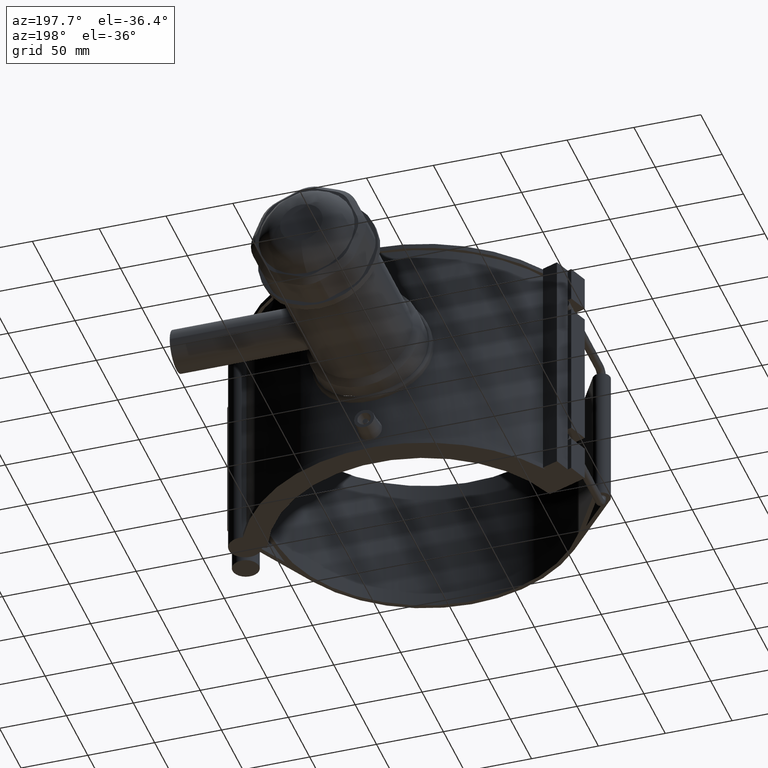
[diagram: clean part render]
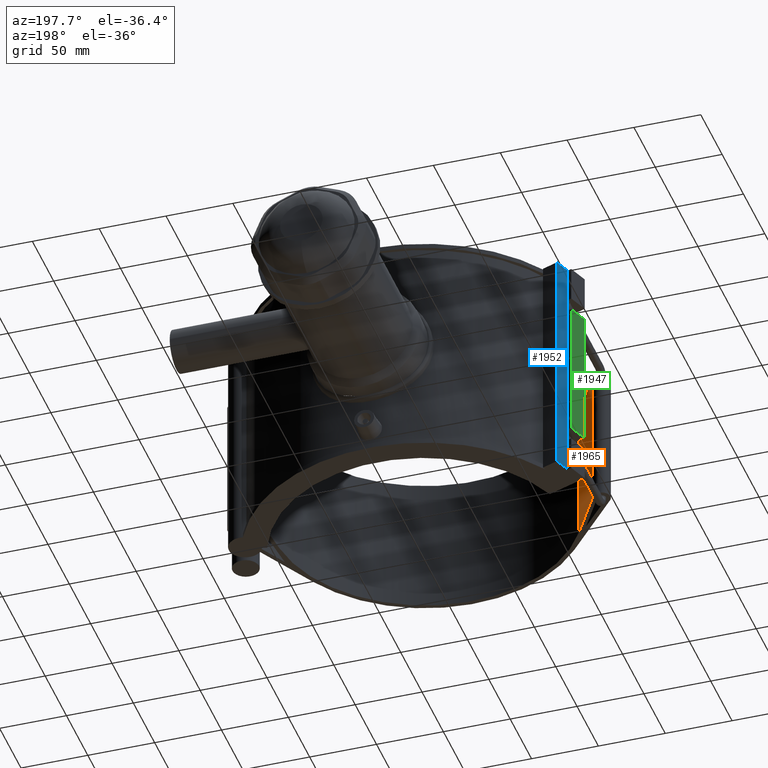
[diagram: same view with three faces highlighted in distinct colors, each labeled with its STEP entity id]
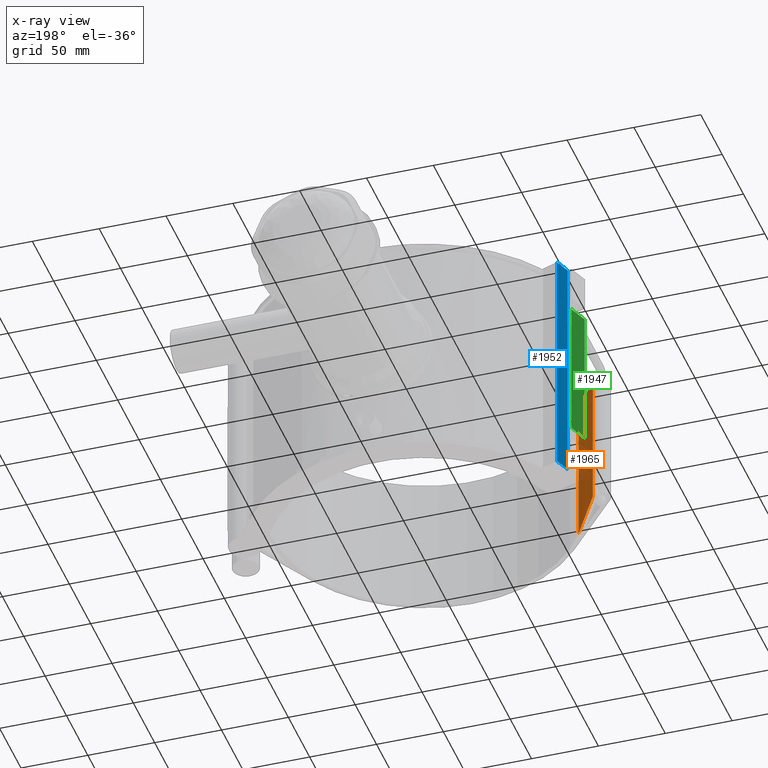
[diagram: x-ray of the same camera — body ghosted, the three highlighted faces saturated]
A machine part, auxiliary view with three faces highlighted in distinct colors.
The next image is the same camera in x-ray (body ghosted, the three faces saturated) — at least one of them is partly hidden behind the body in this view.
Their STEP definitions:

[orange] entity #1965 — the highlighted planar face has unit normal (0.8593, 0.5115, 0).
#104=LINE('',#3333,#265);
#109=LINE('',#3353,#270);
#193=LINE('',#3592,#354);
#194=LINE('',#3593,#355);
#265=VECTOR('',#2451,44.6632069155137);
#270=VECTOR('',#2468,44.6632069155137);
#354=VECTOR('',#2696,105.6);
#355=VECTOR('',#2697,105.6);
#544=FACE_OUTER_BOUND('',#686,.T.);
#686=EDGE_LOOP('',(#1707,#1708,#1709,#1710));
#894=VERTEX_POINT('',#3330);
#895=VERTEX_POINT('',#3332);
#903=VERTEX_POINT('',#3350);
#904=VERTEX_POINT('',#3352);
#1108=EDGE_CURVE('',#894,#895,#104,.T.);
#1118=EDGE_CURVE('',#903,#904,#109,.T.);
#1235=EDGE_CURVE('',#894,#904,#193,.T.);
#1236=EDGE_CURVE('',#895,#903,#194,.T.);
#1707=ORIENTED_EDGE('',*,*,#1235,.T.);
#1708=ORIENTED_EDGE('',*,*,#1118,.F.);
#1709=ORIENTED_EDGE('',*,*,#1236,.F.);
#1710=ORIENTED_EDGE('',*,*,#1108,.F.);
#1861=PLANE('',#2161);
#1965=ADVANCED_FACE('',(#544),#1861,.T.);
#2161=AXIS2_PLACEMENT_3D('',#3591,#2694,#2695);
#2451=DIRECTION('',(0.511479804338622,-0.859295298342616,0.));
#2468=DIRECTION('',(-0.511479804338622,0.859295298342616,0.));
#2694=DIRECTION('center_axis',(0.859295298342616,0.511479804338622,0.));
#2695=DIRECTION('ref_axis',(-0.511479804338622,0.859295298342616,0.));
#2696=DIRECTION('',(0.,0.,1.));
#2697=DIRECTION('',(0.,0.,1.));
#3330=CARTESIAN_POINT('',(-119.515049397827,-19.1625942766905,-52.8));
#3332=CARTESIAN_POINT('',(-96.6707210635443,-57.5414779880949,-52.8));
#3333=CARTESIAN_POINT('',(-96.6707210635443,-57.5414779880949,-52.8));
#3350=CARTESIAN_POINT('',(-96.6707210635443,-57.5414779880949,52.8));
#3352=CARTESIAN_POINT('',(-119.515049397827,-19.1625942766905,52.8));
#3353=CARTESIAN_POINT('',(-96.6707210635443,-57.5414779880949,52.8));
#3591=CARTESIAN_POINT('Origin',(-96.6707210635443,-57.5414779880949,0.));
#3592=CARTESIAN_POINT('',(-119.515049397827,-19.1625942766905,0.));
#3593=CARTESIAN_POINT('',(-96.6707210635443,-57.5414779880949,0.));

[blue] entity #1952 — the highlighted planar face has unit normal (-0.9397, 0.342, 0).
#116=LINE('',#3397,#277);
#117=LINE('',#3401,#278);
#127=LINE('',#3441,#288);
#128=LINE('',#3443,#289);
#130=LINE('',#3447,#291);
#148=LINE('',#3490,#309);
#152=LINE('',#3503,#313);
#155=LINE('',#3508,#316);
#174=LINE('',#3545,#335);
#175=LINE('',#3548,#336);
#176=LINE('',#3550,#337);
#177=LINE('',#3551,#338);
#277=VECTOR('',#2503,5.10345887572063);
#278=VECTOR('',#2506,5.10345887572067);
#288=VECTOR('',#2538,3.93327056213968);
#289=VECTOR('',#2541,0.413270562139685);
#291=VECTOR('',#2545,0.413270562139658);
#309=VECTOR('',#2585,3.93327056213968);
#313=VECTOR('',#2601,26.075);
#316=VECTOR('',#2606,104.95);
#335=VECTOR('',#2637,26.075);
#336=VECTOR('',#2640,12.6);
#337=VECTOR('',#2641,176.);
#338=VECTOR('',#2642,12.6);
#531=FACE_OUTER_BOUND('',#673,.T.);
#673=EDGE_LOOP('',(#1635,#1636,#1637,#1638,#1639,#1640,#1641,#1642,#1643,
#1644,#1645,#1646));
#920=VERTEX_POINT('',#3391);
#921=VERTEX_POINT('',#3393);
#922=VERTEX_POINT('',#3399);
#923=VERTEX_POINT('',#3400);
#931=VERTEX_POINT('',#3427);
#936=VERTEX_POINT('',#3439);
#937=VERTEX_POINT('',#3445);
#951=VERTEX_POINT('',#3486);
#954=VERTEX_POINT('',#3502);
#967=VERTEX_POINT('',#3543);
#968=VERTEX_POINT('',#3547);
#969=VERTEX_POINT('',#3549);
#1138=EDGE_CURVE('',#921,#920,#116,.T.);
#1139=EDGE_CURVE('',#922,#923,#117,.T.);
#1157=EDGE_CURVE('',#920,#936,#127,.T.);
#1158=EDGE_CURVE('',#931,#921,#128,.T.);
#1160=EDGE_CURVE('',#923,#937,#130,.T.);
#1182=EDGE_CURVE('',#951,#922,#148,.T.);
#1188=EDGE_CURVE('',#954,#931,#152,.T.);
#1191=EDGE_CURVE('',#936,#951,#155,.T.);
#1210=EDGE_CURVE('',#937,#967,#174,.T.);
#1211=EDGE_CURVE('',#967,#968,#175,.T.);
#1212=EDGE_CURVE('',#969,#968,#176,.T.);
#1213=EDGE_CURVE('',#954,#969,#177,.T.);
#1635=ORIENTED_EDGE('',*,*,#1211,.T.);
#1636=ORIENTED_EDGE('',*,*,#1212,.F.);
#1637=ORIENTED_EDGE('',*,*,#1213,.F.);
#1638=ORIENTED_EDGE('',*,*,#1188,.T.);
#1639=ORIENTED_EDGE('',*,*,#1158,.T.);
#1640=ORIENTED_EDGE('',*,*,#1138,.T.);
#1641=ORIENTED_EDGE('',*,*,#1157,.T.);
#1642=ORIENTED_EDGE('',*,*,#1191,.T.);
#1643=ORIENTED_EDGE('',*,*,#1182,.T.);
#1644=ORIENTED_EDGE('',*,*,#1139,.T.);
#1645=ORIENTED_EDGE('',*,*,#1160,.T.);
#1646=ORIENTED_EDGE('',*,*,#1210,.T.);
#1852=PLANE('',#2142);
#1952=ADVANCED_FACE('',(#531),#1852,.T.);
#2142=AXIS2_PLACEMENT_3D('',#3546,#2638,#2639);
#2503=DIRECTION('',(0.,0.,1.));
#2506=DIRECTION('',(0.,0.,1.));
#2538=DIRECTION('',(0.,0.,1.));
#2541=DIRECTION('',(0.,0.,1.));
#2545=DIRECTION('',(0.,0.,1.));
#2585=DIRECTION('',(0.,0.,1.));
#2601=DIRECTION('',(0.,0.,1.));
#2606=DIRECTION('',(0.,0.,1.));
#2637=DIRECTION('',(0.,0.,1.));
#2638=DIRECTION('center_axis',(-0.939692620785908,0.342020143325669,0.));
#2639=DIRECTION('ref_axis',(-0.342020143325669,-0.939692620785908,0.));
#2640=DIRECTION('',(0.342020143325669,0.939692620785908,0.));
#2641=DIRECTION('',(0.,0.,1.));
#2642=DIRECTION('',(0.342020143325669,0.939692620785908,0.));
#3391=CARTESIAN_POINT('',(-126.968888380316,62.9736959647984,-56.4082705621397));
#3393=CARTESIAN_POINT('',(-126.968888380316,62.9736959647984,-61.5117294378603));
#3397=CARTESIAN_POINT('',(-126.968888380316,62.9736959647984,-88.));
#3399=CARTESIAN_POINT('',(-126.968888380316,62.9736959647985,56.4082705621397));
#3400=CARTESIAN_POINT('',(-126.968888380316,62.9736959647985,61.5117294378603));
#3401=CARTESIAN_POINT('',(-126.968888380316,62.9736959647984,-88.));
#3427=CARTESIAN_POINT('',(-126.968888380316,62.9736959647984,-61.925));
#3439=CARTESIAN_POINT('',(-126.968888380316,62.9736959647984,-52.475));
#3441=CARTESIAN_POINT('',(-126.968888380316,62.9736959647984,-88.));
#3443=CARTESIAN_POINT('',(-126.968888380316,62.9736959647984,-88.));
#3445=CARTESIAN_POINT('',(-126.968888380316,62.9736959647985,61.925));
#3447=CARTESIAN_POINT('',(-126.968888380316,62.9736959647984,-88.));
#3486=CARTESIAN_POINT('',(-126.968888380316,62.9736959647985,52.475));
#3490=CARTESIAN_POINT('',(-126.968888380316,62.9736959647984,-88.));
#3502=CARTESIAN_POINT('',(-126.968888380316,62.9736959647984,-88.));
#3503=CARTESIAN_POINT('',(-126.968888380316,62.9736959647984,-88.));
#3508=CARTESIAN_POINT('',(-126.968888380316,62.9736959647984,-88.));
#3543=CARTESIAN_POINT('',(-126.968888380316,62.9736959647984,88.));
#3545=CARTESIAN_POINT('',(-126.968888380316,62.9736959647984,-88.));
#3546=CARTESIAN_POINT('Origin',(-122.659434574412,74.8138229867009,-88.));
#3547=CARTESIAN_POINT('',(-122.659434574412,74.8138229867009,88.));
#3548=CARTESIAN_POINT('',(-125.296094408077,67.5696596309246,88.));
#3549=CARTESIAN_POINT('',(-122.659434574412,74.8138229867009,-88.));
#3550=CARTESIAN_POINT('',(-122.659434574412,74.8138229867009,-88.));
#3551=CARTESIAN_POINT('',(-126.968888380316,62.9736959647984,-88.));

[green] entity #1947 — the highlighted planar face has unit normal (-0.9397, 0.342, 0).
#142=LINE('',#3473,#303);
#144=LINE('',#3483,#305);
#149=LINE('',#3497,#310);
#156=LINE('',#3509,#317);
#303=VECTOR('',#2565,104.95);
#305=VECTOR('',#2579,15.75);
#310=VECTOR('',#2594,15.75);
#317=VECTOR('',#2607,104.95);
#526=FACE_OUTER_BOUND('',#668,.T.);
#668=EDGE_LOOP('',(#1607,#1608,#1609,#1610));
#946=VERTEX_POINT('',#3470);
#947=VERTEX_POINT('',#3472);
#949=VERTEX_POINT('',#3482);
#953=VERTEX_POINT('',#3496);
#1173=EDGE_CURVE('',#947,#946,#142,.T.);
#1178=EDGE_CURVE('',#946,#949,#144,.T.);
#1185=EDGE_CURVE('',#953,#947,#149,.T.);
#1192=EDGE_CURVE('',#953,#949,#156,.T.);
#1607=ORIENTED_EDGE('',*,*,#1178,.T.);
#1608=ORIENTED_EDGE('',*,*,#1192,.F.);
#1609=ORIENTED_EDGE('',*,*,#1185,.T.);
#1610=ORIENTED_EDGE('',*,*,#1173,.T.);
#1847=PLANE('',#2137);
#1947=ADVANCED_FACE('',(#526),#1847,.T.);
#2137=AXIS2_PLACEMENT_3D('',#3512,#2611,#2612);
#2565=DIRECTION('',(0.,0.,1.));
#2579=DIRECTION('',(0.342020143325668,0.939692620785909,-6.77927340424307E-32));
#2594=DIRECTION('',(-0.342020143325668,-0.939692620785909,1.35585468084861E-31));
#2607=DIRECTION('',(0.,0.,1.));
#2611=DIRECTION('center_axis',(-0.939692620785909,0.342020143325668,0.));
#2612=DIRECTION('ref_axis',(-0.342020143325669,-0.939692620785908,0.));
#3470=CARTESIAN_POINT('',(-135.315737393171,49.2509006388963,52.475));
#3472=CARTESIAN_POINT('',(-135.315737393171,49.2509006388963,-52.475));
#3473=CARTESIAN_POINT('',(-135.315737393171,49.2509006388962,-88.));
#3482=CARTESIAN_POINT('',(-129.928920135791,64.0510594162743,52.475));
#3483=CARTESIAN_POINT('',(-132.622328764481,56.6509800275853,52.475));
#3496=CARTESIAN_POINT('',(-129.928920135791,64.0510594162744,-52.475));
#3497=CARTESIAN_POINT('',(-132.622328764481,56.6509800275853,-52.475));
#3509=CARTESIAN_POINT('',(-129.928920135791,64.0510594162743,-88.));
#3512=CARTESIAN_POINT('Origin',(-129.928920135791,64.0510594162743,-88.));